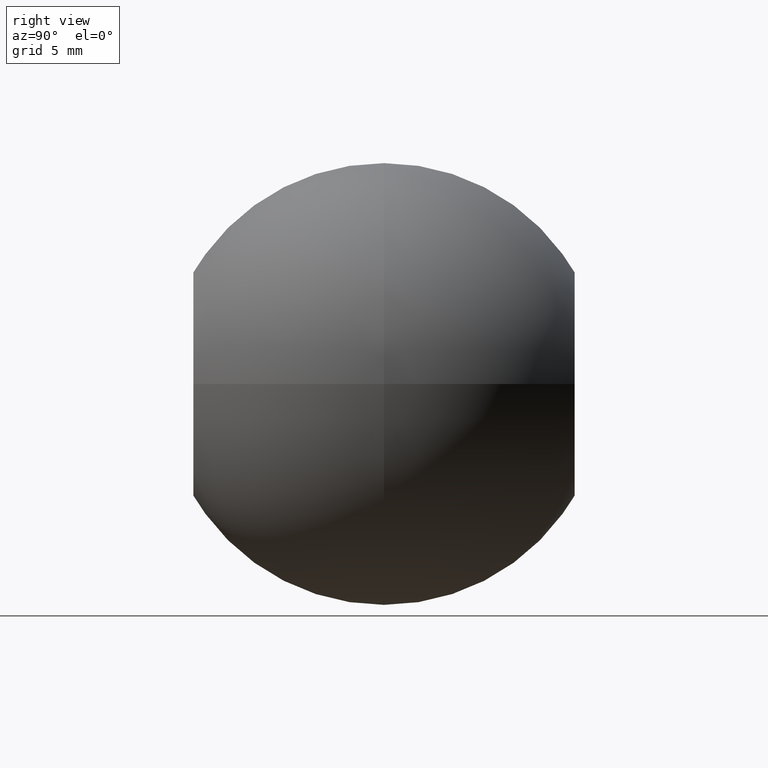
[diagram: clean part render]
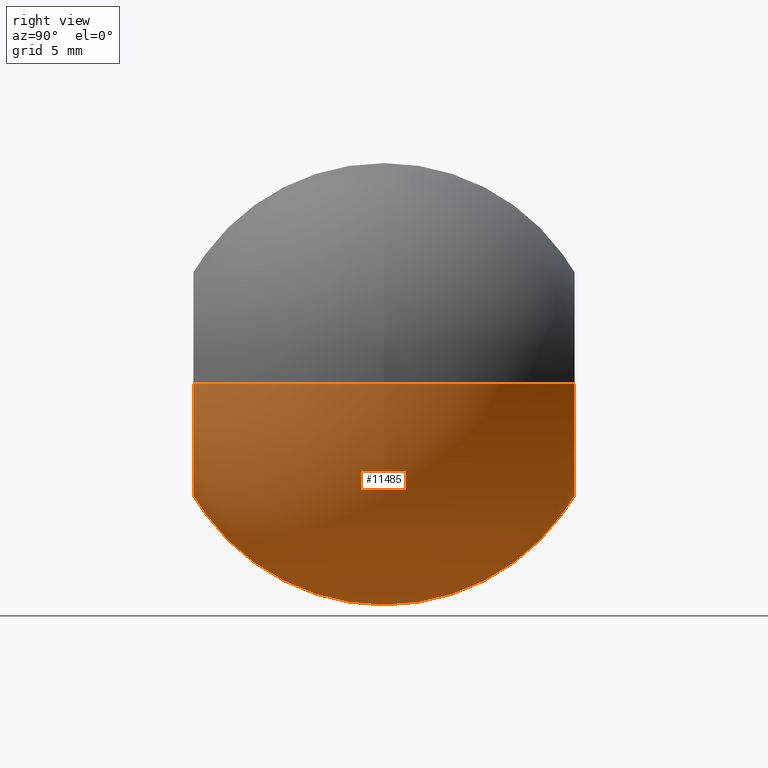
[diagram: same view with one face highlighted and labeled with its STEP entity id]
A machine part, right view. The second image highlights one B-rep face of the part: STEP entity #11485.
In plain terms, the highlighted spherical surface has radius 12.5 mm.
Its self-contained STEP definition (entity closure, byte-faithful):
#153 = VERTEX_POINT ( 'NONE', #10051 ) ;
#185 = CARTESIAN_POINT ( 'NONE',  ( 0.0000000000000000000, -10.78709570086434200, 0.0000000000000000000 ) ) ;
#194 = EDGE_CURVE ( 'NONE', #8021, #11110, #1923, .T. ) ;
#315 = EDGE_CURVE ( 'NONE', #153, #11110, #1639, .T. ) ;
#427 = SPHERICAL_SURFACE ( 'NONE', #2927, 12.50000000000000000 ) ;
#592 = VERTEX_POINT ( 'NONE', #3030 ) ;
#658 = CARTESIAN_POINT ( 'NONE',  ( 6.315739571926160400, 10.78709570086434200, 0.0000000000000000000 ) ) ;
#1031 = EDGE_CURVE ( 'NONE', #592, #1299, #11805, .T. ) ;
#1172 = ORIENTED_EDGE ( 'NONE', *, *, #10299, .T. ) ;
#1212 = DIRECTION ( 'NONE',  ( 0.0000000000000000000, 0.0000000000000000000, 1.000000000000000000 ) ) ;
#1299 = VERTEX_POINT ( 'NONE', #1466 ) ;
#1466 = CARTESIAN_POINT ( 'NONE',  ( -6.315739571926164900, -10.78709570086434200, -7.734550251007653000E-016 ) ) ;
#1639 = CIRCLE ( 'NONE', #6637, 6.315739571926160400 ) ;
#1657 = DIRECTION ( 'NONE',  ( -0.0000000000000000000, -1.000000000000000000, -0.0000000000000000000 ) ) ;
#1882 = VERTEX_POINT ( 'NONE', #11335 ) ;
#1923 = CIRCLE ( 'NONE', #9137, 12.50000000000000000 ) ;
#2493 = DIRECTION ( 'NONE',  ( 0.0000000000000000000, 1.000000000000000000, 0.0000000000000000000 ) ) ;
#2927 = AXIS2_PLACEMENT_3D ( 'NONE', #8973, #11743, #7145 ) ;
#2942 = DIRECTION ( 'NONE',  ( 0.0000000000000000000, 0.0000000000000000000, -1.000000000000000000 ) ) ;
#3022 = DIRECTION ( 'NONE',  ( -0.0000000000000000000, -1.000000000000000000, -0.0000000000000000000 ) ) ;
#3030 = CARTESIAN_POINT ( 'NONE',  ( 1.836970198721029600E-015, -10.78709570086434200, -6.315739571926165800 ) ) ;
#3438 = CIRCLE ( 'NONE', #4006, 6.315739571926160400 ) ;
#3582 = AXIS2_PLACEMENT_3D ( 'NONE', #185, #5656, #7345 ) ;
#4006 = AXIS2_PLACEMENT_3D ( 'NONE', #7113, #1657, #7267 ) ;
#4163 = AXIS2_PLACEMENT_3D ( 'NONE', #11679, #2493, #9869 ) ;
#4533 = AXIS2_PLACEMENT_3D ( 'NONE', #4790, #9381, #9261 ) ;
#4790 = CARTESIAN_POINT ( 'NONE',  ( 0.0000000000000000000, 0.0000000000000000000, 0.0000000000000000000 ) ) ;
#4856 = ORIENTED_EDGE ( 'NONE', *, *, #1031, .T. ) ;
#5622 = ORIENTED_EDGE ( 'NONE', *, *, #7467, .T. ) ;
#5656 = DIRECTION ( 'NONE',  ( 0.0000000000000000000, 1.000000000000000000, 0.0000000000000000000 ) ) ;
#5977 = CIRCLE ( 'NONE', #4533, 12.50000000000000000 ) ;
#6377 = ORIENTED_EDGE ( 'NONE', *, *, #11255, .T. ) ;
#6568 = EDGE_LOOP ( 'NONE', ( #6377, #4856, #5622, #1172, #7336, #11488 ) ) ;
#6637 = AXIS2_PLACEMENT_3D ( 'NONE', #6701, #3022, #2942 ) ;
#6701 = CARTESIAN_POINT ( 'NONE',  ( 0.0000000000000000000, 10.78709570086434200, 0.0000000000000000000 ) ) ;
#7113 = CARTESIAN_POINT ( 'NONE',  ( 0.0000000000000000000, 10.78709570086434200, 0.0000000000000000000 ) ) ;
#7145 = DIRECTION ( 'NONE',  ( 1.000000000000000000, 0.0000000000000000000, 0.0000000000000000000 ) ) ;
#7267 = DIRECTION ( 'NONE',  ( 0.0000000000000000000, 0.0000000000000000000, -1.000000000000000000 ) ) ;
#7336 = ORIENTED_EDGE ( 'NONE', *, *, #315, .T. ) ;
#7345 = DIRECTION ( 'NONE',  ( 0.0000000000000000000, 0.0000000000000000000, 1.000000000000000000 ) ) ;
#7467 = EDGE_CURVE ( 'NONE', #1299, #1882, #5977, .T. ) ;
#7570 = DIRECTION ( 'NONE',  ( 1.000000000000000000, 0.0000000000000000000, 0.0000000000000000000 ) ) ;
#8021 = VERTEX_POINT ( 'NONE', #10925 ) ;
#8108 = FACE_OUTER_BOUND ( 'NONE', #6568, .T. ) ;
#8677 = CIRCLE ( 'NONE', #4163, 6.315739571926164000 ) ;
#8973 = CARTESIAN_POINT ( 'NONE',  ( 0.0000000000000000000, 0.0000000000000000000, 0.0000000000000000000 ) ) ;
#9137 = AXIS2_PLACEMENT_3D ( 'NONE', #11104, #1212, #7570 ) ;
#9261 = DIRECTION ( 'NONE',  ( -1.000000000000000000, 0.0000000000000000000, -1.224646799147353200E-016 ) ) ;
#9381 = DIRECTION ( 'NONE',  ( 1.224646799147353200E-016, 0.0000000000000000000, -1.000000000000000000 ) ) ;
#9869 = DIRECTION ( 'NONE',  ( 0.0000000000000000000, 0.0000000000000000000, 1.000000000000000000 ) ) ;
#10051 = CARTESIAN_POINT ( 'NONE',  ( 2.610425223821794600E-015, 10.78709570086434200, -6.315739571926161300 ) ) ;
#10299 = EDGE_CURVE ( 'NONE', #1882, #153, #3438, .T. ) ;
#10925 = CARTESIAN_POINT ( 'NONE',  ( 6.315739571926164900, -10.78709570086434200, 0.0000000000000000000 ) ) ;
#11104 = CARTESIAN_POINT ( 'NONE',  ( 0.0000000000000000000, 0.0000000000000000000, 0.0000000000000000000 ) ) ;
#11110 = VERTEX_POINT ( 'NONE', #658 ) ;
#11255 = EDGE_CURVE ( 'NONE', #8021, #592, #8677, .T. ) ;
#11335 = CARTESIAN_POINT ( 'NONE',  ( -6.315739571926160400, 10.78709570086434200, -7.734550251007650100E-016 ) ) ;
#11485 = ADVANCED_FACE ( 'NONE', ( #8108 ), #427, .T. ) ;
#11488 = ORIENTED_EDGE ( 'NONE', *, *, #194, .F. ) ;
#11679 = CARTESIAN_POINT ( 'NONE',  ( 0.0000000000000000000, -10.78709570086434200, 0.0000000000000000000 ) ) ;
#11743 = DIRECTION ( 'NONE',  ( 0.0000000000000000000, 0.0000000000000000000, -1.000000000000000000 ) ) ;
#11805 = CIRCLE ( 'NONE', #3582, 6.315739571926164000 ) ;